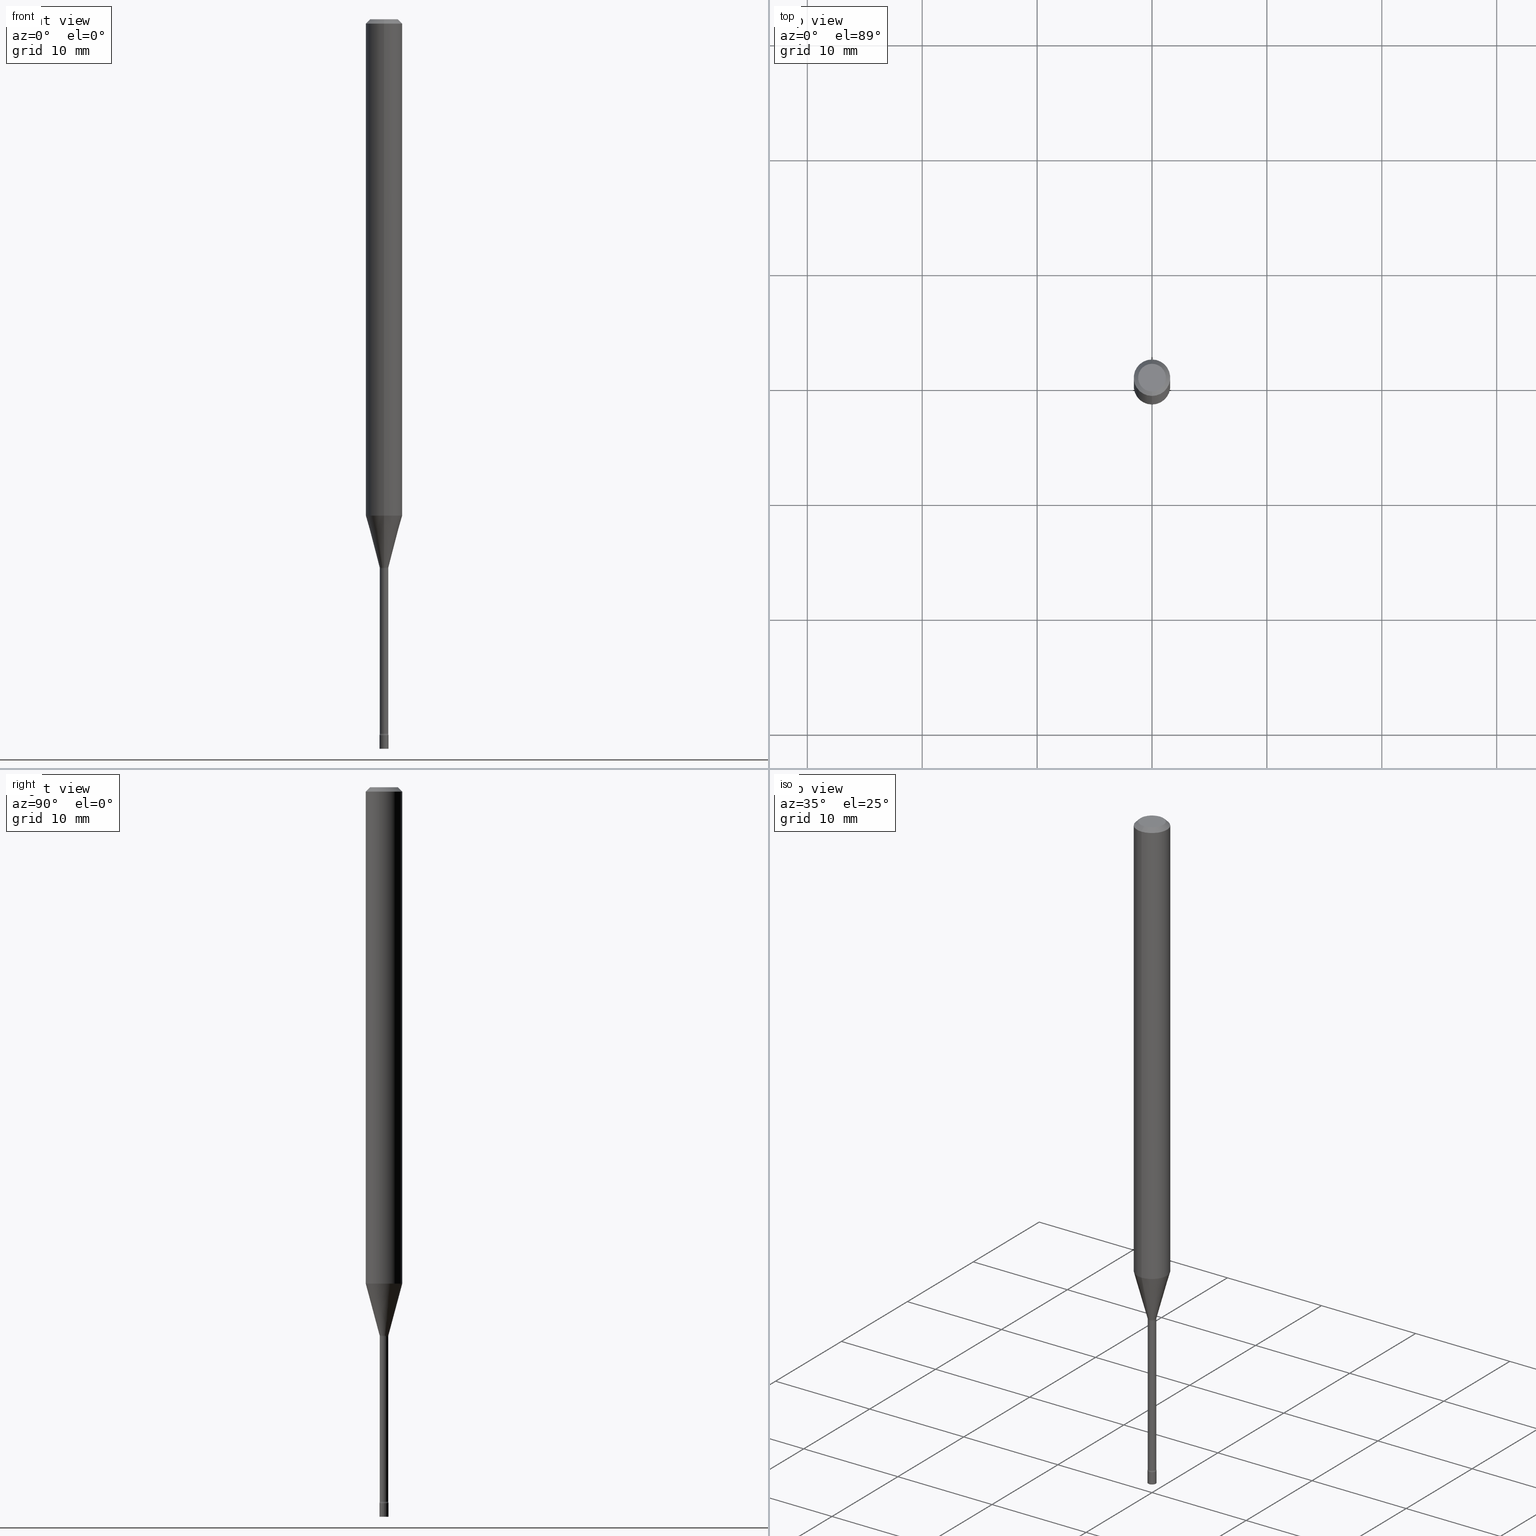
[diagram: canonical four-view strip — front | top / right | iso, engineering-drawing reading convention]
A machine part, canonical four-view strip (front | top / right | iso — engineering-drawing reading convention). The complete STEP part file that produces these views, byte-faithful:
ISO-10303-21;
HEADER;
FILE_DESCRIPTION (( 'STEP AP203' ),
    '1' );
FILE_NAME ('09632.STEP',
    '2024-03-09T00:11:11',
    ( '' ),
    ( '' ),
    'SwSTEP 2.0',
    'SolidWorks 2023',
    '' );
FILE_SCHEMA (( 'CONFIG_CONTROL_DESIGN' ));
ENDSEC;

DATA;
#1 = ORIENTED_EDGE ( 'NONE', *, *, #393, .T. ) ;
#2 = ORIENTED_EDGE ( 'NONE', *, *, #390, .T. ) ;
#3 = APPROVAL_DATE_TIME ( #233, #334 ) ;
#4 = DIRECTION ( 'NONE',  ( -6.982962677686265922E-15, -1.000000000000000000, 3.491469828648210264E-15 ) ) ;
#5 = ORIENTED_EDGE ( 'NONE', *, *, #441, .F. ) ;
#6 = VECTOR ( 'NONE', #283, 39.37007874015748143 ) ;
#7 = CYLINDRICAL_SURFACE ( 'NONE', #397, 0.01455000000000001084 ) ;
#8 = ADVANCED_FACE ( 'NONE', ( #337 ), #208, .T. ) ;
#9 = DATE_AND_TIME ( #459, #438 ) ;
#10 = CC_DESIGN_PERSON_AND_ORGANIZATION_ASSIGNMENT ( #303, #161, ( #412 ) ) ;
#11 = CIRCLE ( 'NONE', #351, 0.06250000000000000000 ) ;
#12 = AXIS2_PLACEMENT_3D ( 'NONE', #497, #143, #203 ) ;
#13 = CARTESIAN_POINT ( 'NONE',  ( 0.01549999999999999989, -8.672839645686373673E-15, -2.452999999999999847 ) ) ;
#14 = DIRECTION ( 'NONE',  ( -2.445476843711301274E-29, 3.491469828648210264E-15, 1.000000000000000000 ) ) ;
#15 = SHAPE_DEFINITION_REPRESENTATION ( #157, #32 ) ;
#16 = ADVANCED_FACE ( 'NONE', ( #294 ), #72, .T. ) ;
#17 = ORIENTED_EDGE ( 'NONE', *, *, #306, .F. ) ;
#18 = COORDINATED_UNIVERSAL_TIME_OFFSET ( 5, 0, .BEHIND. ) ;
#19 = AXIS2_PLACEMENT_3D ( 'NONE', #24, #246, #405 ) ;
#20 =( LENGTH_UNIT ( ) NAMED_UNIT ( * ) SI_UNIT ( $, .METRE. ) );
#21 = CARTESIAN_POINT ( 'NONE',  ( 4.602310636769652825E-29, -6.570879850603192255E-15, -1.881974787463811083 ) ) ;
#22 = DIRECTION ( 'NONE',  ( -2.445476843711301274E-29, 3.491469828648210264E-15, 1.000000000000000000 ) ) ;
#23 = CARTESIAN_POINT ( 'NONE',  ( 5.998754697623822290E-29, -8.564575489674058500E-15, -2.452999999999999847 ) ) ;
#24 = CARTESIAN_POINT ( 'NONE',  ( 5.998734981572139453E-29, -8.564603724182235719E-15, -2.452999999999999847 ) ) ;
#25 = DIRECTION ( 'NONE',  ( -2.445476843711301274E-29, 3.491469828648210264E-15, 1.000000000000000000 ) ) ;
#26 = CIRCLE ( 'NONE', #479, 0.01500000000000001159 ) ;
#27 = EDGE_CURVE ( 'NONE', #322, #252, #289, .T. ) ;
#28 = AXIS2_PLACEMENT_3D ( 'NONE', #65, #335, #442 ) ;
#29 = ORIENTED_EDGE ( 'NONE', *, *, #50, .T. ) ;
#30 = CARTESIAN_POINT ( 'NONE',  ( 7.070963666120591064E-46, -1.009539565390475120E-31, -2.891445766212844011E-17 ) ) ;
#31 = DATE_AND_TIME ( #239, #155 ) ;
#32 = ADVANCED_BREP_SHAPE_REPRESENTATION ( '09632', ( #54, #44, #506 ), #374 ) ;
#33 = CARTESIAN_POINT ( 'NONE',  ( -0.01549999999999999989, -8.536519411602235887E-15, -2.452999999999999847 ) ) ;
#34 = PERSON_AND_ORGANIZATION ( #435, #131 ) ;
#35 = VERTEX_POINT ( 'NONE', #475 ) ;
#36 = LINE ( 'NONE', #117, #314 ) ;
#37 = DIRECTION ( 'NONE',  ( -6.982962677686265922E-15, -1.000000000000000000, 3.483106191921935554E-15 ) ) ;
#38 = EDGE_LOOP ( 'NONE', ( #135, #270, #154, #223 ) ) ;
#39 =( CONVERSION_BASED_UNIT ( 'INCH', #481 ) LENGTH_UNIT ( ) NAMED_UNIT ( #236 ) );
#40 = CIRCLE ( 'NONE', #281, 0.01455000000000002472 ) ;
#41 = DIRECTION ( 'NONE',  ( -1.000000000000000000, 6.982962677686265922E-15, -4.883557194083112340E-29 ) ) ;
#42 = ORIENTED_EDGE ( 'NONE', *, *, #27, .F. ) ;
#43 = CARTESIAN_POINT ( 'NONE',  ( -4.364351673553912750E-16, -0.06250000000000005551, -0.01499999999999981209 ) ) ;
#44 = MANIFOLD_SOLID_BREP ( 'Body-Move/Copy2[2]', #428 ) ;
#45 = EDGE_LOOP ( 'NONE', ( #423, #179, #286, #42 ) ) ;
#46 = ORIENTED_EDGE ( 'NONE', *, *, #113, .F. ) ;
#47 = PLANE ( 'NONE',  #362 ) ;
#48 = EDGE_LOOP ( 'NONE', ( #91, #453, #501, #17 ) ) ;
#49 = ORIENTED_EDGE ( 'NONE', *, *, #221, .F. ) ;
#50 = EDGE_CURVE ( 'NONE', #350, #301, #243, .T. ) ;
#51 = AXIS2_PLACEMENT_3D ( 'NONE', #460, #92, #273 ) ;
#52 = AXIS2_PLACEMENT_3D ( 'NONE', #416, #394, #378 ) ;
#53 = CALENDAR_DATE ( 2024, 8, 3 ) ;
#54 = MANIFOLD_SOLID_BREP ( 'Body-Move/Copy2[1]', #99 ) ;
#55 = CC_DESIGN_DATE_AND_TIME_ASSIGNMENT ( #401, #431, ( #493 ) ) ;
#56 = EDGE_CURVE ( 'NONE', #126, #133, #280, .T. ) ;
#57 = CARTESIAN_POINT ( 'NONE',  ( 3.316907271900976096E-16, 0.04749999999999999362, -1.803020456918542042E-16 ) ) ;
#58 = DIRECTION ( 'NONE',  ( -2.445476843711301274E-29, 3.491469828648210264E-15, 1.000000000000000000 ) ) ;
#59 = CIRCLE ( 'NONE', #86, 0.06250000000000000000 ) ;
#60 = APPROVAL_STATUS ( 'not_yet_approved' ) ;
#61 = CYLINDRICAL_SURFACE ( 'NONE', #466, 0.01549999999999999989 ) ;
#62 = ORIENTED_EDGE ( 'NONE', *, *, #477, .T. ) ;
#63 = APPROVAL ( #60, 'UNSPECIFIED' ) ;
#64 = PERSON_AND_ORGANIZATION ( #435, #131 ) ;
#65 = CARTESIAN_POINT ( 'NONE',  ( 3.668215265566959268E-31, -5.237204742972325603E-17, -0.01500000000000003067 ) ) ;
#66 = ORIENTED_EDGE ( 'NONE', *, *, #393, .F. ) ;
#67 = DIRECTION ( 'NONE',  ( -6.982962677686265922E-15, -1.000000000000000000, 3.491469828648210264E-15 ) ) ;
#68 = AXIS2_PLACEMENT_3D ( 'NONE', #248, #114, #158 ) ;
#69 = CIRCLE ( 'NONE', #52, 0.01549999999999999989 ) ;
#70 = DIRECTION ( 'NONE',  ( -2.445468806185136877E-29, 3.491481338843145188E-15, 1.000000000000000000 ) ) ;
#71 = DIRECTION ( 'NONE',  ( -2.445476843711301274E-29, 3.491469828648210264E-15, 1.000000000000000000 ) ) ;
#72 = CYLINDRICAL_SURFACE ( 'NONE', #373, 0.01549999999999999989 ) ;
#73 = PRODUCT_DEFINITION ( 'UNKNOWN', '', #414, #188 ) ;
#74 = DIRECTION ( 'NONE',  ( -6.982962677686265133E-15, -1.000000000000000000, 0.000000000000000000 ) ) ;
#75 = DIRECTION ( 'NONE',  ( -6.982962677686266711E-15, -1.000000000000000000, 0.000000000000000000 ) ) ;
#76 = DIRECTION ( 'NONE',  ( -2.445476843711301274E-29, 3.491469828648210264E-15, 1.000000000000000000 ) ) ;
#77 = CIRCLE ( 'NONE', #182, 0.01455000000000002472 ) ;
#78 = VERTEX_POINT ( 'NONE', #211 ) ;
#79 = CARTESIAN_POINT ( 'NONE',  ( 4.592831723468601877E-29, -6.557303305400699208E-15, -1.878092501787273161 ) ) ;
#80 = DIRECTION ( 'NONE',  ( -2.445468806185136597E-29, 3.491481338843145583E-15, 1.000000000000000000 ) ) ;
#81 = VERTEX_POINT ( 'NONE', #43 ) ;
#82 = FACE_OUTER_BOUND ( 'NONE', #48, .T. ) ;
#83 = CARTESIAN_POINT ( 'NONE',  ( 3.840629472727447874E-16, 0.04749999999999999362, -1.947592745229184119E-16 ) ) ;
#84 = ORIENTED_EDGE ( 'NONE', *, *, #27, .T. ) ;
#85 = ORIENTED_EDGE ( 'NONE', *, *, #213, .T. ) ;
#86 = AXIS2_PLACEMENT_3D ( 'NONE', #510, #224, #37 ) ;
#87 = PLANE ( 'NONE',  #474 ) ;
#88 = EDGE_LOOP ( 'NONE', ( #319, #312 ) ) ;
#89 = ORIENTED_EDGE ( 'NONE', *, *, #237, .F. ) ;
#90 = DIRECTION ( 'NONE',  ( -2.445468806185136877E-29, 3.491481338843145188E-15, 1.000000000000000000 ) ) ;
#91 = ORIENTED_EDGE ( 'NONE', *, *, #482, .T. ) ;
#92 = DIRECTION ( 'NONE',  ( -1.000000000000000000, 6.982962677686265922E-15, -4.883557194083112340E-29 ) ) ;
#93 = AXIS2_PLACEMENT_3D ( 'NONE', #353, #215, #219 ) ;
#94 = AXIS2_PLACEMENT_3D ( 'NONE', #103, #58, #151 ) ;
#95 = AXIS2_PLACEMENT_3D ( 'NONE', #132, #41, #163 ) ;
#96 = ADVANCED_FACE ( 'NONE', ( #349 ), #264, .T. ) ;
#97 = CALENDAR_DATE ( 2024, 8, 3 ) ;
#98 = PERSON_AND_ORGANIZATION_ROLE ( 'design_supplier' ) ;
#99 = CLOSED_SHELL ( 'NONE', ( #16, #472, #178, #8 ) ) ;
#100 = ORIENTED_EDGE ( 'NONE', *, *, #199, .T. ) ;
#101 = APPROVAL_PERSON_ORGANIZATION ( #385, #334, #421 ) ;
#102 = CC_DESIGN_SECURITY_CLASSIFICATION ( #493, ( #414 ) ) ;
#103 = CARTESIAN_POINT ( 'NONE',  ( 0.000000000000000000, 0.000000000000000000, 0.000000000000000000 ) ) ;
#104 = FACE_OUTER_BOUND ( 'NONE', #347, .T. ) ;
#105 = LINE ( 'NONE', #504, #6 ) ;
#106 = DIRECTION ( 'NONE',  ( -6.982962677686265922E-15, -1.000000000000000000, 3.491469828648210264E-15 ) ) ;
#107 = DIRECTION ( 'NONE',  ( -4.851104656540964275E-15, -0.7071067811865500152, -0.7071067811865450192 ) ) ;
#108 = CIRCLE ( 'NONE', #51, 0.01500000000000001159 ) ;
#109 = VECTOR ( 'NONE', #107, 39.37007874015748143 ) ;
#110 = CARTESIAN_POINT ( 'NONE',  ( -3.773273898774340269E-16, -0.04749999999999999362, 1.369303591986615563E-16 ) ) ;
#111 = DIRECTION ( 'NONE',  ( -2.445476843711301274E-29, 3.491469828648210264E-15, 1.000000000000000000 ) ) ;
#112 = CARTESIAN_POINT ( 'NONE',  ( 1.101341240428755801E-16, 0.01549999999999144597, -2.452999999999999847 ) ) ;
#113 = EDGE_CURVE ( 'NONE', #214, #391, #36, .T. ) ;
#114 = DIRECTION ( 'NONE',  ( 1.000000000000000000, -7.105427357601001070E-15, 4.926315367582848254E-29 ) ) ;
#115 = UNCERTAINTY_MEASURE_WITH_UNIT (LENGTH_MEASURE( 1.000000000000000082E-05 ), #39, 'distance_accuracy_value', 'NONE');
#116 =( NAMED_UNIT ( * ) SI_UNIT ( $, .STERADIAN. ) SOLID_ANGLE_UNIT ( ) );
#117 = CARTESIAN_POINT ( 'NONE',  ( 4.440892098500625669E-16, 0.06250000000000000000, -2.182168642905131415E-16 ) ) ;
#118 = ORIENTED_EDGE ( 'NONE', *, *, #299, .T. ) ;
#119 = CIRCLE ( 'NONE', #515, 0.01506111260566398054 ) ;
#120 = DIRECTION ( 'NONE',  ( -6.982962677686265922E-15, -1.000000000000000000, 0.000000000000000000 ) ) ;
#121 = PRODUCT_RELATED_PRODUCT_CATEGORY ( 'detail', '', ( #412 ) ) ;
#122 = CARTESIAN_POINT ( 'NONE',  ( 0.000000000000000000, 0.000000000000000000, 0.000000000000000000 ) ) ;
#123 = ORIENTED_EDGE ( 'NONE', *, *, #309, .F. ) ;
#124 = EDGE_CURVE ( 'NONE', #271, #252, #140, .T. ) ;
#125 = DIRECTION ( 'NONE',  ( 1.000000000000000000, -7.105427357601001070E-15, 4.926315367582848254E-29 ) ) ;
#126 = VERTEX_POINT ( 'NONE', #381 ) ;
#127 = ORIENTED_EDGE ( 'NONE', *, *, #139, .T. ) ;
#128 = EDGE_LOOP ( 'NONE', ( #49, #85, #489, #354 ) ) ;
#129 = AXIS2_PLACEMENT_3D ( 'NONE', #130, #377, #120 ) ;
#130 = CARTESIAN_POINT ( 'NONE',  ( 4.592831723468601877E-29, -6.557303305400699208E-15, -1.878092501787273161 ) ) ;
#131 = ORGANIZATION ( 'UNSPECIFIED', 'UNSPECIFIED', '' ) ;
#132 = CARTESIAN_POINT ( 'NONE',  ( -2.063465471255831169E-16, -0.02955000000000656407, -1.881974787463811083 ) ) ;
#133 = VERTEX_POINT ( 'NONE', #269 ) ;
#134 = ADVANCED_FACE ( 'NONE', ( #317 ), #47, .F. ) ;
#135 = ORIENTED_EDGE ( 'NONE', *, *, #198, .F. ) ;
#136 = APPROVAL_ROLE ( '' ) ;
#137 = CARTESIAN_POINT ( 'NONE',  ( 7.070963666120591064E-46, -1.009539565390475120E-31, -2.891445766212844011E-17 ) ) ;
#138 = ORIENTED_EDGE ( 'NONE', *, *, #263, .T. ) ;
#139 = EDGE_CURVE ( 'NONE', #252, #271, #514, .T. ) ;
#140 = CIRCLE ( 'NONE', #437, 0.01549999999999999989 ) ;
#141 = CONICAL_SURFACE ( 'NONE', #12, 0.06250000000000000000, 0.7853981633974483900 ) ;
#142 = EDGE_CURVE ( 'NONE', #78, #301, #26, .T. ) ;
#143 = DIRECTION ( 'NONE',  ( 2.445476843711301274E-29, -3.491469828648210264E-15, -1.000000000000000000 ) ) ;
#144 = TOROIDAL_SURFACE ( 'NONE', #181, 0.02955000000000003804, 0.01500000000000001506 ) ;
#145 = VECTOR ( 'NONE', #173, 39.37007874015748143 ) ;
#146 = PERSON_AND_ORGANIZATION_ROLE ( 'classification_officer' ) ;
#147 = DIRECTION ( 'NONE',  ( 1.000000000000000000, -6.982962677686266711E-15, 4.876176775795935232E-29 ) ) ;
#148 = FACE_OUTER_BOUND ( 'NONE', #389, .T. ) ;
#149 = DIRECTION ( 'NONE',  ( 1.000000000000000000, -6.982962677686266711E-15, 4.876176775795935232E-29 ) ) ;
#150 = DIRECTION ( 'NONE',  ( -6.982962677686266711E-15, -1.000000000000000000, 3.491469828648210264E-15 ) ) ;
#151 = DIRECTION ( 'NONE',  ( -6.982962677686265922E-15, -1.000000000000000000, 3.491469828648210264E-15 ) ) ;
#152 = EDGE_CURVE ( 'NONE', #193, #447, #402, .T. ) ;
#153 = DIRECTION ( 'NONE',  ( -2.445476843711301274E-29, 3.491469828648210264E-15, 1.000000000000000000 ) ) ;
#154 = ORIENTED_EDGE ( 'NONE', *, *, #441, .T. ) ;
#155 = LOCAL_TIME ( 19, 11, 11.00000000000000000, #18 ) ;
#156 = DIRECTION ( 'NONE',  ( -2.445476843711301274E-29, 3.491469828648210264E-15, 1.000000000000000000 ) ) ;
#157 = PRODUCT_DEFINITION_SHAPE ( 'NONE', 'NONE',  #73 ) ;
#158 = DIRECTION ( 'NONE',  ( 7.105427357600999492E-15, 1.000000000000000000, 0.000000000000000000 ) ) ;
#159 = ORIENTED_EDGE ( 'NONE', *, *, #390, .F. ) ;
#160 = ORIENTED_EDGE ( 'NONE', *, *, #124, .F. ) ;
#161 = PERSON_AND_ORGANIZATION_ROLE ( 'design_owner' ) ;
#162 = CC_DESIGN_PERSON_AND_ORGANIZATION_ASSIGNMENT ( #34, #98, ( #414 ) ) ;
#163 = DIRECTION ( 'NONE',  ( -6.982962677686265133E-15, -1.000000000000000000, 0.000000000000000000 ) ) ;
#164 = DIRECTION ( 'NONE',  ( -6.982962677686265922E-15, -1.000000000000000000, 3.491469828648210264E-15 ) ) ;
#165 = ADVANCED_FACE ( 'NONE', ( #434 ), #205, .T. ) ;
#166 = ORIENTED_EDGE ( 'NONE', *, *, #417, .F. ) ;
#167 = AXIS2_PLACEMENT_3D ( 'NONE', #370, #468, #191 ) ;
#168 = CIRCLE ( 'NONE', #323, 0.04749999999999999362 ) ;
#169 = DIRECTION ( 'NONE',  ( -2.445476843711301274E-29, 3.491469828648210264E-15, 1.000000000000000000 ) ) ;
#170 = EDGE_LOOP ( 'NONE', ( #2, #456, #348, #5 ) ) ;
#171 = APPROVAL_STATUS ( 'not_yet_approved' ) ;
#172 = DIRECTION ( 'NONE',  ( 7.105427357601003436E-15, 1.000000000000000000, 0.000000000000000000 ) ) ;
#173 = DIRECTION ( 'NONE',  ( -2.445476843711301274E-29, 3.491469828648210264E-15, 1.000000000000000000 ) ) ;
#174 = VERTEX_POINT ( 'NONE', #443 ) ;
#175 = DIRECTION ( 'NONE',  ( -2.445476843711301274E-29, 3.491469828648210264E-15, 1.000000000000000000 ) ) ;
#176 = ADVANCED_FACE ( 'NONE', ( #499 ), #144, .F. ) ;
#177 = ORIENTED_EDGE ( 'NONE', *, *, #408, .T. ) ;
#178 = ADVANCED_FACE ( 'NONE', ( #104 ), #61, .T. ) ;
#179 = ORIENTED_EDGE ( 'NONE', *, *, #277, .T. ) ;
#180 = DATE_AND_TIME ( #97, #231 ) ;
#181 = AXIS2_PLACEMENT_3D ( 'NONE', #288, #404, #282 ) ;
#182 = AXIS2_PLACEMENT_3D ( 'NONE', #247, #409, #74 ) ;
#183 = ADVANCED_FACE ( 'NONE', ( #361 ), #186, .T. ) ;
#184 = APPROVAL ( #276, 'UNSPECIFIED' ) ;
#185 = APPROVAL_DATE_TIME ( #9, #184 ) ;
#186 = CONICAL_SURFACE ( 'NONE', #356, 0.06250000000000000000, 0.7853981633974483900 ) ;
#187 = CIRCLE ( 'NONE', #235, 0.06250000000000000000 ) ;
#188 = DESIGN_CONTEXT ( 'detailed design', #330, 'design' ) ;
#189 = ADVANCED_FACE ( 'NONE', ( #82 ), #262, .T. ) ;
#190 = PERSON_AND_ORGANIZATION ( #435, #131 ) ;
#191 = DIRECTION ( 'NONE',  ( 1.000000000000000000, -6.982962677686301420E-15, 0.000000000000000000 ) ) ;
#192 = DIRECTION ( 'NONE',  ( -2.445468806185136597E-29, 3.491481338843145583E-15, 1.000000000000000000 ) ) ;
#193 = VERTEX_POINT ( 'NONE', #110 ) ;
#194 = FACE_OUTER_BOUND ( 'NONE', #170, .T. ) ;
#195 = AXIS2_PLACEMENT_3D ( 'NONE', #332, #111, #249 ) ;
#196 = CIRCLE ( 'NONE', #255, 0.01549999999999999989 ) ;
#197 = PERSON_AND_ORGANIZATION ( #435, #131 ) ;
#198 = EDGE_CURVE ( 'NONE', #78, #133, #202, .T. ) ;
#199 = EDGE_CURVE ( 'NONE', #447, #391, #292, .T. ) ;
#200 = CARTESIAN_POINT ( 'NONE',  ( -4.364351673553500570E-16, -0.06250000000000595357, -1.701048163777072464 ) ) ;
#201 = ORIENTED_EDGE ( 'NONE', *, *, #277, .F. ) ;
#202 = LINE ( 'NONE', #339, #326 ) ;
#203 = DIRECTION ( 'NONE',  ( 6.982962677686265922E-15, 1.000000000000000000, -3.483106191921935554E-15 ) ) ;
#204 = CARTESIAN_POINT ( 'NONE',  ( 4.440892098501044258E-16, 0.06249999999999995143, -0.01500000000000024751 ) ) ;
#205 = CONICAL_SURFACE ( 'NONE', #341, 0.01506111260566398054, 0.2617993877991499074 ) ;
#206 = VECTOR ( 'NONE', #90, 39.37007874015748143 ) ;
#207 = MECHANICAL_CONTEXT ( 'NONE', #308, 'mechanical' ) ;
#208 = PLANE ( 'NONE',  #505 ) ;
#209 = COORDINATED_UNIVERSAL_TIME_OFFSET ( 5, 0, .BEHIND. ) ;
#210 = DIRECTION ( 'NONE',  ( 1.000000000000000000, 0.000000000000000000, 0.000000000000000000 ) ) ;
#211 = CARTESIAN_POINT ( 'NONE',  ( 1.067590460480151308E-16, 0.01454999999999147774, -2.447746667724196357 ) ) ;
#212 = CARTESIAN_POINT ( 'NONE',  ( -1.051711872097357942E-16, -0.01506111260567053779, -1.878092501787273161 ) ) ;
#213 = EDGE_CURVE ( 'NONE', #478, #133, #446, .T. ) ;
#214 = VERTEX_POINT ( 'NONE', #256 ) ;
#215 = DIRECTION ( 'NONE',  ( -2.445468806185136597E-29, 3.491481338843145583E-15, 1.000000000000000000 ) ) ;
#216 = CARTESIAN_POINT ( 'NONE',  ( 4.159873894554460783E-29, -5.939158340905088868E-15, -1.701048163777072908 ) ) ;
#217 = VERTEX_POINT ( 'NONE', #448 ) ;
#218 = CC_DESIGN_APPROVAL ( #184, ( #414 ) ) ;
#219 = DIRECTION ( 'NONE',  ( 1.000000000000000000, -6.982962677686238312E-15, 0.000000000000000000 ) ) ;
#220 = CARTESIAN_POINT ( 'NONE',  ( -1.016021069603352548E-16, -0.01455000000000001084, 5.080088600683149511E-17 ) ) ;
#221 = EDGE_CURVE ( 'NONE', #478, #217, #230, .T. ) ;
#222 = ORIENTED_EDGE ( 'NONE', *, *, #142, .F. ) ;
#223 = ORIENTED_EDGE ( 'NONE', *, *, #491, .F. ) ;
#224 = DIRECTION ( 'NONE',  ( -2.445476843711301274E-29, 3.491469828648210264E-15, 1.000000000000000000 ) ) ;
#225 = DIRECTION ( 'NONE',  ( -6.982962677686265922E-15, -1.000000000000000000, 4.370956789862821150E-15 ) ) ;
#226 = ORIENTED_EDGE ( 'NONE', *, *, #417, .T. ) ;
#227 = CARTESIAN_POINT ( 'NONE',  ( 1.082359215041971067E-16, 0.01549999999999143382, -2.452999999999999847 ) ) ;
#228 = ORIENTED_EDGE ( 'NONE', *, *, #124, .T. ) ;
#229 = COORDINATED_UNIVERSAL_TIME_OFFSET ( 5, 0, .BEHIND. ) ;
#230 = CIRCLE ( 'NONE', #383, 0.01506111260566398054 ) ;
#231 = LOCAL_TIME ( 19, 11, 11.00000000000000000, #229 ) ;
#232 = ORIENTED_EDGE ( 'NONE', *, *, #199, .F. ) ;
#233 = DATE_AND_TIME ( #53, #462 ) ;
#234 = AXIS2_PLACEMENT_3D ( 'NONE', #137, #156, #367 ) ;
#235 = AXIS2_PLACEMENT_3D ( 'NONE', #363, #153, #403 ) ;
#236 = DIMENSIONAL_EXPONENTS ( 1.000000000000000000, 0.000000000000000000, 0.000000000000000000, 0.000000000000000000, 0.000000000000000000, 0.000000000000000000, 0.000000000000000000 ) ;
#237 = EDGE_CURVE ( 'NONE', #35, #350, #108, .T. ) ;
#238 = PERSON_AND_ORGANIZATION_ROLE ( 'creator' ) ;
#239 = CALENDAR_DATE ( 2024, 8, 3 ) ;
#240 = CARTESIAN_POINT ( 'NONE',  ( 0.000000000000000000, 0.000000000000000000, 0.000000000000000000 ) ) ;
#241 = DIRECTION ( 'NONE',  ( -2.445468806185136597E-29, 3.491481338843145583E-15, 1.000000000000000000 ) ) ;
#242 = DIRECTION ( 'NONE',  ( -1.000000000000000000, 6.982962677686265922E-15, -4.876176775795935793E-29 ) ) ;
#243 = CIRCLE ( 'NONE', #495, 0.01549999999999999989 ) ;
#244 = ADVANCED_FACE ( 'NONE', ( #429 ), #492, .F. ) ;
#245 = APPROVAL_PERSON_ORGANIZATION ( #490, #184, #136 ) ;
#246 = DIRECTION ( 'NONE',  ( -2.438088387897960049E-29, 3.491481338843145188E-15, 1.000000000000000000 ) ) ;
#247 = CARTESIAN_POINT ( 'NONE',  ( 5.985907795191022558E-29, -8.546233638533228487E-15, -2.447746667724196357 ) ) ;
#248 = CARTESIAN_POINT ( 'NONE',  ( 2.099653784171555552E-16, 0.02954999999999342528, -1.881974787463811083 ) ) ;
#249 = DIRECTION ( 'NONE',  ( -6.982962677686266711E-15, -1.000000000000000000, 0.000000000000000000 ) ) ;
#250 = LINE ( 'NONE', #433, #109 ) ;
#251 = CARTESIAN_POINT ( 'NONE',  ( 4.364351673553919652E-16, 0.06249999999999995143, -0.01500000000000024751 ) ) ;
#252 = VERTEX_POINT ( 'NONE', #13 ) ;
#253 = FACE_OUTER_BOUND ( 'NONE', #128, .T. ) ;
#254 = APPROVAL_DATE_TIME ( #31, #63 ) ;
#255 = AXIS2_PLACEMENT_3D ( 'NONE', #500, #22, #410 ) ;
#256 = CARTESIAN_POINT ( 'NONE',  ( 4.440892098501039328E-16, 0.06249999999999404643, -1.701048163777073130 ) ) ;
#257 = ADVANCED_FACE ( 'NONE', ( #457 ), #7, .T. ) ;
#258 = ORIENTED_EDGE ( 'NONE', *, *, #309, .T. ) ;
#259 = DIRECTION ( 'NONE',  ( 1.000000000000000000, -6.982962677686238312E-15, 0.000000000000000000 ) ) ;
#260 = DIRECTION ( 'NONE',  ( -1.807323732225327773E-15, -0.2588190451025178529, 0.9659258262890690894 ) ) ;
#261 = ORIENTED_EDGE ( 'NONE', *, *, #365, .T. ) ;
#262 = CYLINDRICAL_SURFACE ( 'NONE', #94, 0.06250000000000000000 ) ;
#263 = EDGE_CURVE ( 'NONE', #214, #509, #11, .T. ) ;
#264 = CONICAL_SURFACE ( 'NONE', #129, 0.01506111260566398054, 0.2617993877991499074 ) ;
#265 = EDGE_LOOP ( 'NONE', ( #123, #343, #100, #226 ) ) ;
#266 = APPLICATION_PROTOCOL_DEFINITION ( 'international standard', 'config_control_design', 1994, #308 ) ;
#267 = ORIENTED_EDGE ( 'NONE', *, *, #142, .T. ) ;
#268 = ORIENTED_EDGE ( 'NONE', *, *, #152, .T. ) ;
#269 = CARTESIAN_POINT ( 'NONE',  ( 1.033839680531545582E-16, 0.01454999999999342930, -1.881974787463811083 ) ) ;
#270 = ORIENTED_EDGE ( 'NONE', *, *, #285, .T. ) ;
#271 = VERTEX_POINT ( 'NONE', #33 ) ;
#272 = CC_DESIGN_PERSON_AND_ORGANIZATION_ASSIGNMENT ( #359, #427, ( #73 ) ) ;
#273 = DIRECTION ( 'NONE',  ( -6.982962677686268288E-15, -1.000000000000000000, 0.000000000000000000 ) ) ;
#274 = ADVANCED_FACE ( 'NONE', ( #313 ), #379, .T. ) ;
#275 = AXIS2_PLACEMENT_3D ( 'NONE', #413, #71, #67 ) ;
#276 = APPROVAL_STATUS ( 'not_yet_approved' ) ;
#277 = EDGE_CURVE ( 'NONE', #174, #271, #450, .T. ) ;
#278 = ADVANCED_FACE ( 'NONE', ( #194 ), #469, .T. ) ;
#279 = CALENDAR_DATE ( 2024, 8, 3 ) ;
#280 = CIRCLE ( 'NONE', #195, 0.01455000000000000043 ) ;
#281 = AXIS2_PLACEMENT_3D ( 'NONE', #287, #502, #290 ) ;
#282 = DIRECTION ( 'NONE',  ( -6.982962677686265922E-15, -1.000000000000000000, 3.491469828648210264E-15 ) ) ;
#283 = DIRECTION ( 'NONE',  ( -2.445476843711301274E-29, 3.491469828648210264E-15, 1.000000000000000000 ) ) ;
#284 = SECURITY_CLASSIFICATION_LEVEL ( 'unclassified' ) ;
#285 = EDGE_CURVE ( 'NONE', #78, #35, #77, .T. ) ;
#286 = ORIENTED_EDGE ( 'NONE', *, *, #139, .F. ) ;
#287 = CARTESIAN_POINT ( 'NONE',  ( 5.985907795191022558E-29, -8.546233638533228487E-15, -2.447746667724196357 ) ) ;
#288 = CARTESIAN_POINT ( 'NONE',  ( 5.985888121363136129E-29, -8.546261812574526278E-15, -2.447746667724196357 ) ) ;
#289 = LINE ( 'NONE', #400, #461 ) ;
#290 = DIRECTION ( 'NONE',  ( -6.982962677686265133E-15, -1.000000000000000000, 0.000000000000000000 ) ) ;
#291 = APPROVAL_PERSON_ORGANIZATION ( #190, #63, #366 ) ;
#292 = LINE ( 'NONE', #251, #395 ) ;
#293 = DIRECTION ( 'NONE',  ( 2.445476843711300994E-29, -3.491469828648210264E-15, -1.000000000000000000 ) ) ;
#294 = FACE_OUTER_BOUND ( 'NONE', #45, .T. ) ;
#295 = DIRECTION ( 'NONE',  ( -2.445476843711301274E-29, 3.491469828648210264E-15, 1.000000000000000000 ) ) ;
#296 = CARTESIAN_POINT ( 'NONE',  ( 2.755524256971723102E-16, 0.01506111260565742675, -1.878092501787273161 ) ) ;
#297 = CC_DESIGN_PERSON_AND_ORGANIZATION_ASSIGNMENT ( #64, #238, ( #414 ) ) ;
#298 = DIRECTION ( 'NONE',  ( -2.445476843711301274E-29, 3.491469828648210264E-15, 1.000000000000000000 ) ) ;
#299 = EDGE_CURVE ( 'NONE', #217, #478, #119, .T. ) ;
#300 = AXIS2_PLACEMENT_3D ( 'NONE', #21, #76, #106 ) ;
#301 = VERTEX_POINT ( 'NONE', #112 ) ;
#302 = DIRECTION ( 'NONE',  ( 2.445476843711301274E-29, -3.491469828648210264E-15, -1.000000000000000000 ) ) ;
#303 = PERSON_AND_ORGANIZATION ( #435, #131 ) ;
#304 = CARTESIAN_POINT ( 'NONE',  ( 5.998734981572139453E-29, -8.564603724182235719E-15, -2.452999999999999847 ) ) ;
#305 = DIRECTION ( 'NONE',  ( -6.982962677686265922E-15, -1.000000000000000000, 3.491469828648210264E-15 ) ) ;
#306 = EDGE_CURVE ( 'NONE', #509, #81, #105, .T. ) ;
#307 = ORIENTED_EDGE ( 'NONE', *, *, #465, .T. ) ;
#308 = APPLICATION_CONTEXT ( 'configuration controlled 3d designs of mechanical parts and assemblies' ) ;
#309 = EDGE_CURVE ( 'NONE', #193, #81, #250, .T. ) ;
#310 = LINE ( 'NONE', #220, #145 ) ;
#311 = CARTESIAN_POINT ( 'NONE',  ( 5.985888121363136129E-29, -8.546261812574526278E-15, -2.447746667724196357 ) ) ;
#312 = ORIENTED_EDGE ( 'NONE', *, *, #454, .F. ) ;
#313 = FACE_OUTER_BOUND ( 'NONE', #387, .T. ) ;
#314 = VECTOR ( 'NONE', #424, 39.37007874015748143 ) ;
#315 = ORIENTED_EDGE ( 'NONE', *, *, #152, .F. ) ;
#316 = AXIS2_PLACEMENT_3D ( 'NONE', #471, #298, #150 ) ;
#317 = FACE_OUTER_BOUND ( 'NONE', #88, .T. ) ;
#318 = CARTESIAN_POINT ( 'NONE',  ( -0.01549999999999999989, 1.101341240428155280E-16, -7.624349389895103058E-31 ) ) ;
#319 = ORIENTED_EDGE ( 'NONE', *, *, #50, .F. ) ;
#320 = COORDINATED_UNIVERSAL_TIME_OFFSET ( 5, 0, .BEHIND. ) ;
#321 = DIRECTION ( 'NONE',  ( -6.982962677686265922E-15, -1.000000000000000000, 0.000000000000000000 ) ) ;
#322 = VERTEX_POINT ( 'NONE', #507 ) ;
#323 = AXIS2_PLACEMENT_3D ( 'NONE', #30, #25, #369 ) ;
#324 = ADVANCED_FACE ( 'NONE', ( #411 ), #487, .F. ) ;
#325 = DIRECTION ( 'NONE',  ( -6.982962677686265922E-15, -1.000000000000000000, 0.000000000000000000 ) ) ;
#326 = VECTOR ( 'NONE', #295, 39.37007874015748143 ) ;
#327 = LINE ( 'NONE', #331, #455 ) ;
#328 = LOCAL_TIME ( 19, 11, 11.00000000000000000, #209 ) ;
#329 = CARTESIAN_POINT ( 'NONE',  ( 3.668215265566959268E-31, -5.237204742972325603E-17, -0.01500000000000003067 ) ) ;
#330 = APPLICATION_CONTEXT ( 'configuration controlled 3d designs of mechanical parts and assemblies' ) ;
#331 = CARTESIAN_POINT ( 'NONE',  ( 1.070156415442400836E-16, 0.01506111260565742502, -1.878092501787273161 ) ) ;
#332 = CARTESIAN_POINT ( 'NONE',  ( 4.602325763191248132E-29, -6.570858188706524470E-15, -1.881974787463811083 ) ) ;
#333 = CARTESIAN_POINT ( 'NONE',  ( 4.592831723468601877E-29, -6.557303305400699208E-15, -1.878092501787273161 ) ) ;
#334 = APPROVAL ( #171, 'UNSPECIFIED' ) ;
#335 = DIRECTION ( 'NONE',  ( -2.445476843711301274E-29, 3.491469828648210264E-15, 1.000000000000000000 ) ) ;
#336 = CARTESIAN_POINT ( 'NONE',  ( 0.000000000000000000, 0.000000000000000000, 0.000000000000000000 ) ) ;
#337 = FACE_OUTER_BOUND ( 'NONE', #483, .T. ) ;
#338 = ORIENTED_EDGE ( 'NONE', *, *, #285, .F. ) ;
#339 = CARTESIAN_POINT ( 'NONE',  ( 1.033839680530946418E-16, 0.01455000000000001084, -5.080088600683149511E-17 ) ) ;
#340 = APPLICATION_PROTOCOL_DEFINITION ( 'international standard', 'config_control_design', 1994, #330 ) ;
#341 = AXIS2_PLACEMENT_3D ( 'NONE', #333, #360, #325 ) ;
#342 = AXIS2_PLACEMENT_3D ( 'NONE', #444, #14, #75 ) ;
#343 = ORIENTED_EDGE ( 'NONE', *, *, #365, .F. ) ;
#344 = CARTESIAN_POINT ( 'NONE',  ( 2.099653784171697300E-16, 0.02954999999999149279, -2.447746667724196357 ) ) ;
#345 = ORIENTED_EDGE ( 'NONE', *, *, #454, .T. ) ;
#346 = CARTESIAN_POINT ( 'NONE',  ( 0.000000000000000000, 0.000000000000000000, 0.000000000000000000 ) ) ;
#347 = EDGE_LOOP ( 'NONE', ( #201, #177, #84, #160 ) ) ;
#348 = ORIENTED_EDGE ( 'NONE', *, *, #56, .F. ) ;
#349 = FACE_OUTER_BOUND ( 'NONE', #384, .T. ) ;
#350 = VERTEX_POINT ( 'NONE', #498 ) ;
#351 = AXIS2_PLACEMENT_3D ( 'NONE', #216, #488, #225 ) ;
#352 = DATE_TIME_ROLE ( 'creation_date' ) ;
#353 = CARTESIAN_POINT ( 'NONE',  ( 5.998734981572139453E-29, -8.564603724182235719E-15, -2.452999999999999847 ) ) ;
#354 = ORIENTED_EDGE ( 'NONE', *, *, #430, .F. ) ;
#355 = ADVANCED_FACE ( 'NONE', ( #253 ), #496, .F. ) ;
#356 = AXIS2_PLACEMENT_3D ( 'NONE', #329, #302, #513 ) ;
#357 = VECTOR ( 'NONE', #260, 39.37007874015748143 ) ;
#358 = CC_DESIGN_APPROVAL ( #63, ( #493 ) ) ;
#359 = PERSON_AND_ORGANIZATION ( #435, #131 ) ;
#360 = DIRECTION ( 'NONE',  ( -2.445476843711301274E-29, 3.491469828648210264E-15, 1.000000000000000000 ) ) ;
#361 = FACE_OUTER_BOUND ( 'NONE', #265, .T. ) ;
#362 = AXIS2_PLACEMENT_3D ( 'NONE', #227, #392, #4 ) ;
#363 = CARTESIAN_POINT ( 'NONE',  ( 4.159873894554460783E-29, -5.939158340905088868E-15, -1.701048163777072908 ) ) ;
#364 = AXIS2_PLACEMENT_3D ( 'NONE', #122, #169, #305 ) ;
#365 = EDGE_CURVE ( 'NONE', #447, #193, #168, .T. ) ;
#366 = APPROVAL_ROLE ( '' ) ;
#367 = DIRECTION ( 'NONE',  ( -6.982962677686266711E-15, -1.000000000000000000, 3.491469828648210264E-15 ) ) ;
#368 = DIRECTION ( 'NONE',  ( 6.982962677686265922E-15, 1.000000000000000000, -3.491469828648210264E-15 ) ) ;
#369 = DIRECTION ( 'NONE',  ( -6.982962677686266711E-15, -1.000000000000000000, 3.491469828648210264E-15 ) ) ;
#370 = CARTESIAN_POINT ( 'NONE',  ( 6.113672015462842613E-29, -8.728703347107864943E-15, -2.500000000000000000 ) ) ;
#371 = ORIENTED_EDGE ( 'NONE', *, *, #299, .F. ) ;
#372 = DIRECTION ( 'NONE',  ( -6.982962677686265922E-15, -1.000000000000000000, 0.000000000000000000 ) ) ;
#373 = AXIS2_PLACEMENT_3D ( 'NONE', #336, #241, #149 ) ;
#374 =( GEOMETRIC_REPRESENTATION_CONTEXT ( 3 ) GLOBAL_UNCERTAINTY_ASSIGNED_CONTEXT ( ( #115 ) ) GLOBAL_UNIT_ASSIGNED_CONTEXT ( ( #39, #452, #116 ) ) REPRESENTATION_CONTEXT ( 'NONE', 'WORKASPACE' ) );
#375 = CARTESIAN_POINT ( 'NONE',  ( 1.082359215041982407E-16, 0.01549999999999127076, -2.500000000000000000 ) ) ;
#376 = ORIENTED_EDGE ( 'NONE', *, *, #482, .F. ) ;
#377 = DIRECTION ( 'NONE',  ( -2.445476843711301274E-29, 3.491469828648210264E-15, 1.000000000000000000 ) ) ;
#378 = DIRECTION ( 'NONE',  ( 1.000000000000000000, -6.982962677686301420E-15, 0.000000000000000000 ) ) ;
#379 = CYLINDRICAL_SURFACE ( 'NONE', #364, 0.06250000000000000000 ) ;
#380 = ORIENTED_EDGE ( 'NONE', *, *, #306, .T. ) ;
#381 = CARTESIAN_POINT ( 'NONE',  ( -1.016021069602891557E-16, -0.01455000000000657157, -1.881974787463811083 ) ) ;
#382 = LINE ( 'NONE', #212, #357 ) ;
#383 = AXIS2_PLACEMENT_3D ( 'NONE', #79, #484, #321 ) ;
#384 = EDGE_LOOP ( 'NONE', ( #518, #463, #1, #451 ) ) ;
#385 = PERSON_AND_ORGANIZATION ( #435, #131 ) ;
#386 = FACE_OUTER_BOUND ( 'NONE', #425, .T. ) ;
#387 = EDGE_LOOP ( 'NONE', ( #46, #138, #380, #166 ) ) ;
#388 = COORDINATED_UNIVERSAL_TIME_OFFSET ( 5, 0, .BEHIND. ) ;
#389 = EDGE_LOOP ( 'NONE', ( #127, #228 ) ) ;
#390 = EDGE_CURVE ( 'NONE', #35, #78, #40, .T. ) ;
#391 = VERTEX_POINT ( 'NONE', #204 ) ;
#392 = DIRECTION ( 'NONE',  ( -2.445476843711300994E-29, 3.491469828648210264E-15, 1.000000000000000000 ) ) ;
#393 = EDGE_CURVE ( 'NONE', #217, #509, #382, .T. ) ;
#394 = DIRECTION ( 'NONE',  ( -2.445468806185136597E-29, 3.491481338843145583E-15, 1.000000000000000000 ) ) ;
#395 = VECTOR ( 'NONE', #508, 39.37007874015748143 ) ;
#396 = CC_DESIGN_APPROVAL ( #334, ( #73 ) ) ;
#397 = AXIS2_PLACEMENT_3D ( 'NONE', #519, #175, #511 ) ;
#398 = CC_DESIGN_DATE_AND_TIME_ASSIGNMENT ( #180, #352, ( #73 ) ) ;
#399 = FACE_OUTER_BOUND ( 'NONE', #426, .T. ) ;
#400 = CARTESIAN_POINT ( 'NONE',  ( 0.01549999999999999989, -1.082359215041371286E-16, 7.558074002483699918E-31 ) ) ;
#401 = DATE_AND_TIME ( #279, #328 ) ;
#402 = CIRCLE ( 'NONE', #234, 0.04749999999999999362 ) ;
#403 = DIRECTION ( 'NONE',  ( -6.982962677686265922E-15, -1.000000000000000000, 4.370956789862821150E-15 ) ) ;
#404 = DIRECTION ( 'NONE',  ( -2.445476843711301274E-29, 3.491469828648210264E-15, 1.000000000000000000 ) ) ;
#405 = DIRECTION ( 'NONE',  ( 1.000000000000000000, -6.982962677686265922E-15, 4.876176775795935793E-29 ) ) ;
#406 = ORIENTED_EDGE ( 'NONE', *, *, #408, .F. ) ;
#407 = CC_DESIGN_PERSON_AND_ORGANIZATION_ASSIGNMENT ( #197, #146, ( #493 ) ) ;
#408 = EDGE_CURVE ( 'NONE', #174, #322, #69, .T. ) ;
#409 = DIRECTION ( 'NONE',  ( -2.445476843711301274E-29, 3.491469828648210264E-15, 1.000000000000000000 ) ) ;
#410 = DIRECTION ( 'NONE',  ( -6.982962677686265922E-15, -1.000000000000000000, 0.000000000000000000 ) ) ;
#411 = FACE_OUTER_BOUND ( 'NONE', #480, .T. ) ;
#412 = PRODUCT ( '09632', '09632', '', ( #207 ) ) ;
#413 = CARTESIAN_POINT ( 'NONE',  ( 4.602310636769652825E-29, -6.570879850603192255E-15, -1.881974787463811083 ) ) ;
#414 = PRODUCT_DEFINITION_FORMATION_WITH_SPECIFIED_SOURCE ( 'ANY', '', #412, .NOT_KNOWN. ) ;
#415 = ORIENTED_EDGE ( 'NONE', *, *, #213, .F. ) ;
#416 = CARTESIAN_POINT ( 'NONE',  ( 6.113672015462842613E-29, -8.728703347107864943E-15, -2.500000000000000000 ) ) ;
#417 = EDGE_CURVE ( 'NONE', #391, #81, #59, .T. ) ;
#418 = AXIS2_PLACEMENT_3D ( 'NONE', #311, #422, #164 ) ;
#419 = CIRCLE ( 'NONE', #28, 0.06250000000000000000 ) ;
#420 = EDGE_LOOP ( 'NONE', ( #118, #62, #376, #66 ) ) ;
#421 = APPROVAL_ROLE ( '' ) ;
#422 = DIRECTION ( 'NONE',  ( -2.445476843711301274E-29, 3.491469828648210264E-15, 1.000000000000000000 ) ) ;
#423 = ORIENTED_EDGE ( 'NONE', *, *, #517, .T. ) ;
#424 = DIRECTION ( 'NONE',  ( -2.445476843711301274E-29, 3.491469828648210264E-15, 1.000000000000000000 ) ) ;
#425 = EDGE_LOOP ( 'NONE', ( #261, #268 ) ) ;
#426 = EDGE_LOOP ( 'NONE', ( #315, #258, #307, #232 ) ) ;
#427 = PERSON_AND_ORGANIZATION_ROLE ( 'creator' ) ;
#428 = CLOSED_SHELL ( 'NONE', ( #355, #278, #244, #494, #189, #165, #96, #274, #183, #449, #134, #176, #257, #324 ) ) ;
#429 = FACE_OUTER_BOUND ( 'NONE', #470, .T. ) ;
#430 = EDGE_CURVE ( 'NONE', #217, #126, #467, .T. ) ;
#431 = DATE_TIME_ROLE ( 'classification_date' ) ;
#432 = CIRCLE ( 'NONE', #342, 0.01455000000000000043 ) ;
#433 = CARTESIAN_POINT ( 'NONE',  ( -4.287811248607203282E-16, -0.06250000000000005551, -0.01499999999999981209 ) ) ;
#434 = FACE_OUTER_BOUND ( 'NONE', #420, .T. ) ;
#435 = PERSON ( 'UNSPECIFIED', 'UNSPECIFIED', 'UNSPECIFIED', ('UNSPECIFIED'), ('UNSPECIFIED'), ('UNSPECIFIED') ) ;
#436 = DIRECTION ( 'NONE',  ( 2.438088387897960049E-29, -3.491481338843145188E-15, -1.000000000000000000 ) ) ;
#437 = AXIS2_PLACEMENT_3D ( 'NONE', #304, #80, #259 ) ;
#438 = LOCAL_TIME ( 19, 11, 11.00000000000000000, #320 ) ;
#439 = PLANE ( 'NONE',  #19 ) ;
#440 = DIRECTION ( 'NONE',  ( -2.445476843711301274E-29, 3.491469828648210264E-15, 1.000000000000000000 ) ) ;
#441 = EDGE_CURVE ( 'NONE', #35, #126, #310, .T. ) ;
#442 = DIRECTION ( 'NONE',  ( -6.982962677686265922E-15, -1.000000000000000000, 3.483106191921935554E-15 ) ) ;
#443 = CARTESIAN_POINT ( 'NONE',  ( -0.01549999999999999989, -8.536519411602235887E-15, -2.500000000000000000 ) ) ;
#444 = CARTESIAN_POINT ( 'NONE',  ( 4.602325763191248132E-29, -6.570858188706524470E-15, -1.881974787463811083 ) ) ;
#445 = CARTESIAN_POINT ( 'NONE',  ( 4.592831723468601877E-29, -6.557303305400699208E-15, -1.878092501787273161 ) ) ;
#446 = CIRCLE ( 'NONE', #68, 0.01500000000000002373 ) ;
#447 = VERTEX_POINT ( 'NONE', #83 ) ;
#448 = CARTESIAN_POINT ( 'NONE',  ( -1.051711872097357942E-16, -0.01506111260567053779, -1.878092501787273161 ) ) ;
#449 = ADVANCED_FACE ( 'NONE', ( #386 ), #87, .F. ) ;
#450 = LINE ( 'NONE', #318, #206 ) ;
#451 = ORIENTED_EDGE ( 'NONE', *, *, #263, .F. ) ;
#452 =( NAMED_UNIT ( * ) PLANE_ANGLE_UNIT ( ) SI_UNIT ( $, .RADIAN. ) );
#453 = ORIENTED_EDGE ( 'NONE', *, *, #113, .T. ) ;
#454 = EDGE_CURVE ( 'NONE', #301, #350, #196, .T. ) ;
#455 = VECTOR ( 'NONE', #473, 39.37007874015748854 ) ;
#456 = ORIENTED_EDGE ( 'NONE', *, *, #198, .T. ) ;
#457 = FACE_OUTER_BOUND ( 'NONE', #38, .T. ) ;
#458 = ORIENTED_EDGE ( 'NONE', *, *, #237, .T. ) ;
#459 = CALENDAR_DATE ( 2024, 8, 3 ) ;
#460 = CARTESIAN_POINT ( 'NONE',  ( -2.063465471255695831E-16, -0.02955000000000858329, -2.447746667724196357 ) ) ;
#461 = VECTOR ( 'NONE', #70, 39.37007874015748143 ) ;
#462 = LOCAL_TIME ( 19, 11, 11.00000000000000000, #388 ) ;
#463 = ORIENTED_EDGE ( 'NONE', *, *, #221, .T. ) ;
#464 = CIRCLE ( 'NONE', #167, 0.01549999999999999989 ) ;
#465 = EDGE_CURVE ( 'NONE', #81, #391, #419, .T. ) ;
#466 = AXIS2_PLACEMENT_3D ( 'NONE', #240, #192, #147 ) ;
#467 = CIRCLE ( 'NONE', #95, 0.01500000000000002373 ) ;
#468 = DIRECTION ( 'NONE',  ( -2.445468806185136597E-29, 3.491481338843145583E-15, 1.000000000000000000 ) ) ;
#469 = CYLINDRICAL_SURFACE ( 'NONE', #316, 0.01455000000000001084 ) ;
#470 = EDGE_LOOP ( 'NONE', ( #338, #267, #345, #89 ) ) ;
#471 = CARTESIAN_POINT ( 'NONE',  ( 0.000000000000000000, 0.000000000000000000, 0.000000000000000000 ) ) ;
#472 = ADVANCED_FACE ( 'NONE', ( #148 ), #439, .T. ) ;
#473 = DIRECTION ( 'NONE',  ( 1.839019923739597554E-15, 0.2588190451025245697, 0.9659258262890670910 ) ) ;
#474 = AXIS2_PLACEMENT_3D ( 'NONE', #57, #293, #368 ) ;
#475 = CARTESIAN_POINT ( 'NONE',  ( -1.016021069602754739E-16, -0.01455000000000856997, -2.447746667724196357 ) ) ;
#476 = DIRECTION ( 'NONE',  ( -2.445476843711301274E-29, 3.491469828648210264E-15, 1.000000000000000000 ) ) ;
#477 = EDGE_CURVE ( 'NONE', #478, #214, #327, .T. ) ;
#478 = VERTEX_POINT ( 'NONE', #296 ) ;
#479 = AXIS2_PLACEMENT_3D ( 'NONE', #344, #125, #172 ) ;
#480 = EDGE_LOOP ( 'NONE', ( #415, #371, #516, #512 ) ) ;
#481 = LENGTH_MEASURE_WITH_UNIT ( LENGTH_MEASURE( 0.02539999999999999897 ), #20 );
#482 = EDGE_CURVE ( 'NONE', #509, #214, #187, .T. ) ;
#483 = EDGE_LOOP ( 'NONE', ( #486, #406 ) ) ;
#484 = DIRECTION ( 'NONE',  ( -2.445476843711301274E-29, 3.491469828648210264E-15, 1.000000000000000000 ) ) ;
#485 = DIRECTION ( 'NONE',  ( 0.000000000000000000, 0.000000000000000000, 1.000000000000000000 ) ) ;
#486 = ORIENTED_EDGE ( 'NONE', *, *, #517, .F. ) ;
#487 = TOROIDAL_SURFACE ( 'NONE', #300, 0.02954999999999999641, 0.01500000000000002200 ) ;
#488 = DIRECTION ( 'NONE',  ( -2.445476843711301274E-29, 3.491469828648210264E-15, 1.000000000000000000 ) ) ;
#489 = ORIENTED_EDGE ( 'NONE', *, *, #491, .T. ) ;
#490 = PERSON_AND_ORGANIZATION ( #435, #131 ) ;
#491 = EDGE_CURVE ( 'NONE', #133, #126, #432, .T. ) ;
#492 = TOROIDAL_SURFACE ( 'NONE', #418, 0.02955000000000003804, 0.01500000000000001506 ) ;
#493 = SECURITY_CLASSIFICATION ( '', '', #284 ) ;
#494 = ADVANCED_FACE ( 'NONE', ( #399 ), #141, .T. ) ;
#495 = AXIS2_PLACEMENT_3D ( 'NONE', #23, #476, #503 ) ;
#496 = TOROIDAL_SURFACE ( 'NONE', #275, 0.02954999999999999641, 0.01500000000000002200 ) ;
#497 = CARTESIAN_POINT ( 'NONE',  ( 3.668215265566959268E-31, -5.237204742972325603E-17, -0.01500000000000003067 ) ) ;
#498 = CARTESIAN_POINT ( 'NONE',  ( -1.082359215040772121E-16, -0.01550000000000857463, -2.452999999999999847 ) ) ;
#499 = FACE_OUTER_BOUND ( 'NONE', #520, .T. ) ;
#500 = CARTESIAN_POINT ( 'NONE',  ( 5.998754697623822290E-29, -8.564575489674058500E-15, -2.452999999999999847 ) ) ;
#501 = ORIENTED_EDGE ( 'NONE', *, *, #465, .F. ) ;
#502 = DIRECTION ( 'NONE',  ( -2.445476843711301274E-29, 3.491469828648210264E-15, 1.000000000000000000 ) ) ;
#503 = DIRECTION ( 'NONE',  ( -6.982962677686265922E-15, -1.000000000000000000, 0.000000000000000000 ) ) ;
#504 = CARTESIAN_POINT ( 'NONE',  ( -4.364351673553916201E-16, -0.06250000000000000000, 2.182168642905131415E-16 ) ) ;
#505 = AXIS2_PLACEMENT_3D ( 'NONE', #375, #436, #242 ) ;
#506 = AXIS2_PLACEMENT_3D ( 'NONE', #346, #485, #210 ) ;
#507 = CARTESIAN_POINT ( 'NONE',  ( 0.01549999999999999989, -8.836939268612002897E-15, -2.500000000000000000 ) ) ;
#508 = DIRECTION ( 'NONE',  ( 4.937700262164548042E-15, 0.7071067811865451302, -0.7071067811865499042 ) ) ;
#509 = VERTEX_POINT ( 'NONE', #200 ) ;
#510 = CARTESIAN_POINT ( 'NONE',  ( 3.668215265566959268E-31, -5.237204742972325603E-17, -0.01500000000000003067 ) ) ;
#511 = DIRECTION ( 'NONE',  ( -6.982962677686266711E-15, -1.000000000000000000, 3.491469828648210264E-15 ) ) ;
#512 = ORIENTED_EDGE ( 'NONE', *, *, #56, .T. ) ;
#513 = DIRECTION ( 'NONE',  ( 6.982962677686265922E-15, 1.000000000000000000, -3.483106191921935554E-15 ) ) ;
#514 = CIRCLE ( 'NONE', #93, 0.01549999999999999989 ) ;
#515 = AXIS2_PLACEMENT_3D ( 'NONE', #445, #440, #372 ) ;
#516 = ORIENTED_EDGE ( 'NONE', *, *, #430, .T. ) ;
#517 = EDGE_CURVE ( 'NONE', #322, #174, #464, .T. ) ;
#518 = ORIENTED_EDGE ( 'NONE', *, *, #477, .F. ) ;
#519 = CARTESIAN_POINT ( 'NONE',  ( 0.000000000000000000, 0.000000000000000000, 0.000000000000000000 ) ) ;
#520 = EDGE_LOOP ( 'NONE', ( #222, #159, #458, #29 ) ) ;
ENDSEC;
END-ISO-10303-21;
